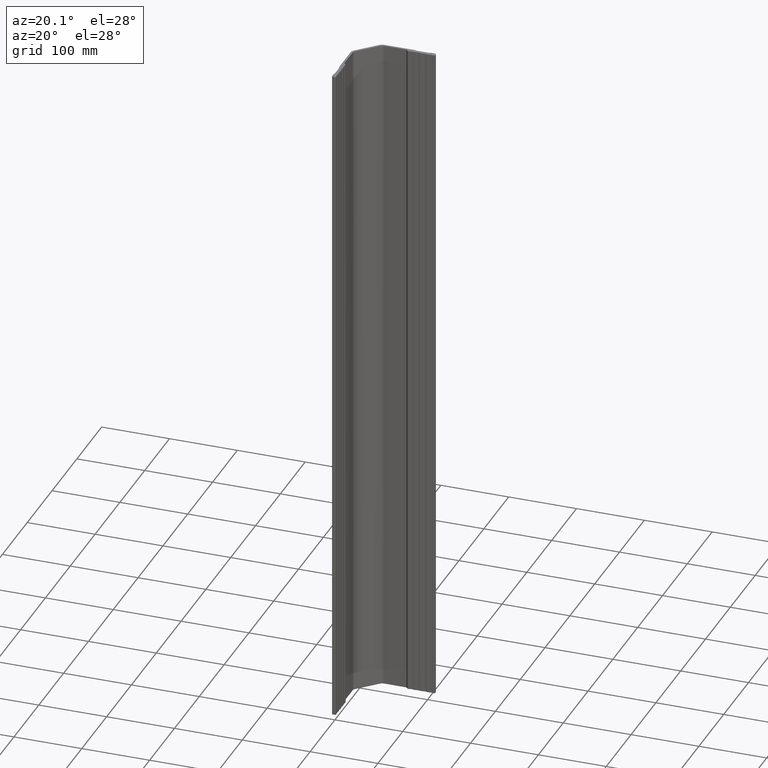
[diagram: clean part render]
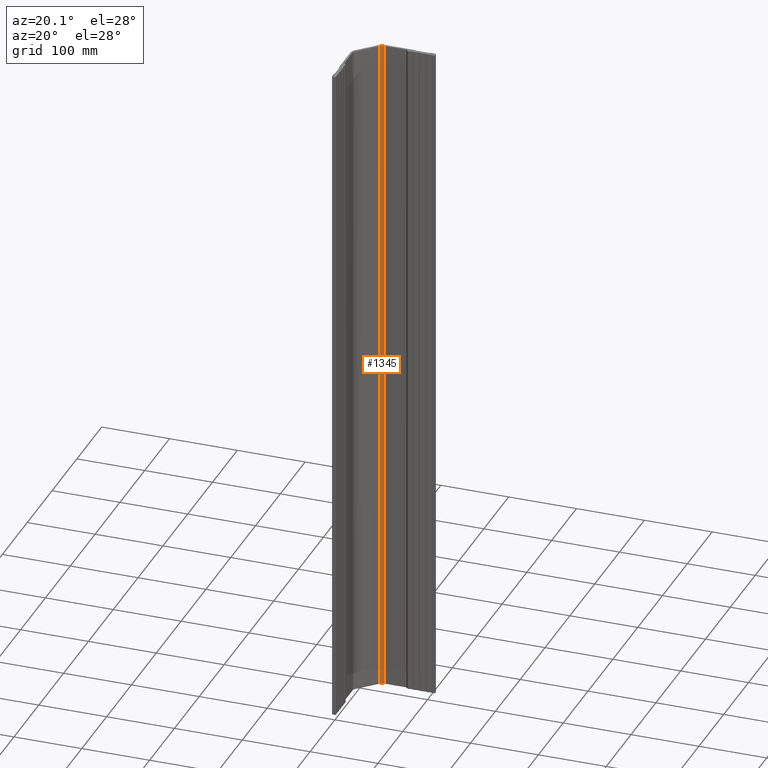
[diagram: same view with one face highlighted and labeled with its STEP entity id]
A machine part, auxiliary view. The second image highlights one B-rep face of the part: STEP entity #1345.
In plain terms, the highlighted cylindrical surface (edge-blend (fillet) strip) has radius 7 mm, axis along (-0, -0, -1).
Its self-contained STEP definition (entity closure, byte-faithful):
#57 = VERTEX_POINT ( 'NONE', #168 ) ;
#122 = CARTESIAN_POINT ( 'NONE',  ( 31.94974746830582600, -5.050252531694164700, 500.0000000000000000 ) ) ;
#152 = DIRECTION ( 'NONE',  ( -0.0000000000000000000, -0.0000000000000000000, -1.000000000000000000 ) ) ;
#168 = CARTESIAN_POINT ( 'NONE',  ( 36.89949493661166000, -2.999999999999997300, -500.0000000000000000 ) ) ;
#282 = LINE ( 'NONE', #1267, #1209 ) ;
#428 = CIRCLE ( 'NONE', #2084, 6.999999999999999100 ) ;
#474 = DIRECTION ( 'NONE',  ( -0.0000000000000000000, -0.0000000000000000000, -1.000000000000000000 ) ) ;
#548 = DIRECTION ( 'NONE',  ( -1.000000000000000000, 0.0000000000000000000, 0.0000000000000000000 ) ) ;
#559 = ORIENTED_EDGE ( 'NONE', *, *, #1882, .T. ) ;
#568 = DIRECTION ( 'NONE',  ( -0.0000000000000000000, -0.0000000000000000000, -1.000000000000000000 ) ) ;
#599 = EDGE_CURVE ( 'NONE', #2045, #57, #1836, .T. ) ;
#602 = FACE_OUTER_BOUND ( 'NONE', #1591, .T. ) ;
#611 = EDGE_CURVE ( 'NONE', #999, #57, #282, .T. ) ;
#638 = CARTESIAN_POINT ( 'NONE',  ( 31.94974746830582600, -5.050252531694164700, -500.0000000000000000 ) ) ;
#764 = LINE ( 'NONE', #122, #1421 ) ;
#875 = ORIENTED_EDGE ( 'NONE', *, *, #599, .T. ) ;
#999 = VERTEX_POINT ( 'NONE', #2169 ) ;
#1015 = CYLINDRICAL_SURFACE ( 'NONE', #1634, 7.000000000000002700 ) ;
#1209 = VECTOR ( 'NONE', #1486, 1000.000000000000000 ) ;
#1267 = CARTESIAN_POINT ( 'NONE',  ( 36.89949493661166000, -2.999999999999997300, 500.0000000000000000 ) ) ;
#1345 = ADVANCED_FACE ( 'NONE', ( #602 ), #1015, .F. ) ;
#1363 = EDGE_CURVE ( 'NONE', #2171, #999, #428, .T. ) ;
#1421 = VECTOR ( 'NONE', #2339, 1000.000000000000000 ) ;
#1486 = DIRECTION ( 'NONE',  ( -0.0000000000000000000, -0.0000000000000000000, -1.000000000000000000 ) ) ;
#1591 = EDGE_LOOP ( 'NONE', ( #875, #2229, #2464, #559 ) ) ;
#1634 = AXIS2_PLACEMENT_3D ( 'NONE', #1784, #152, #548 ) ;
#1697 = CARTESIAN_POINT ( 'NONE',  ( 36.89949493661166000, -10.00000000000000000, -500.0000000000000000 ) ) ;
#1708 = AXIS2_PLACEMENT_3D ( 'NONE', #1697, #474, #1903 ) ;
#1784 = CARTESIAN_POINT ( 'NONE',  ( 36.89949493661166000, -10.00000000000000000, 500.0000000000000000 ) ) ;
#1795 = CARTESIAN_POINT ( 'NONE',  ( 36.89949493661166000, -10.00000000000000000, 500.0000000000000000 ) ) ;
#1836 = CIRCLE ( 'NONE', #1708, 6.999999999999999100 ) ;
#1882 = EDGE_CURVE ( 'NONE', #2171, #2045, #764, .T. ) ;
#1903 = DIRECTION ( 'NONE',  ( 1.000000000000000000, 0.0000000000000000000, 0.0000000000000000000 ) ) ;
#1908 = CARTESIAN_POINT ( 'NONE',  ( 31.94974746830582600, -5.050252531694164700, 500.0000000000000000 ) ) ;
#2001 = DIRECTION ( 'NONE',  ( 1.000000000000000000, 0.0000000000000000000, 0.0000000000000000000 ) ) ;
#2045 = VERTEX_POINT ( 'NONE', #638 ) ;
#2084 = AXIS2_PLACEMENT_3D ( 'NONE', #1795, #568, #2001 ) ;
#2169 = CARTESIAN_POINT ( 'NONE',  ( 36.89949493661166000, -2.999999999999997300, 500.0000000000000000 ) ) ;
#2171 = VERTEX_POINT ( 'NONE', #1908 ) ;
#2229 = ORIENTED_EDGE ( 'NONE', *, *, #611, .F. ) ;
#2339 = DIRECTION ( 'NONE',  ( -0.0000000000000000000, -0.0000000000000000000, -1.000000000000000000 ) ) ;
#2464 = ORIENTED_EDGE ( 'NONE', *, *, #1363, .F. ) ;